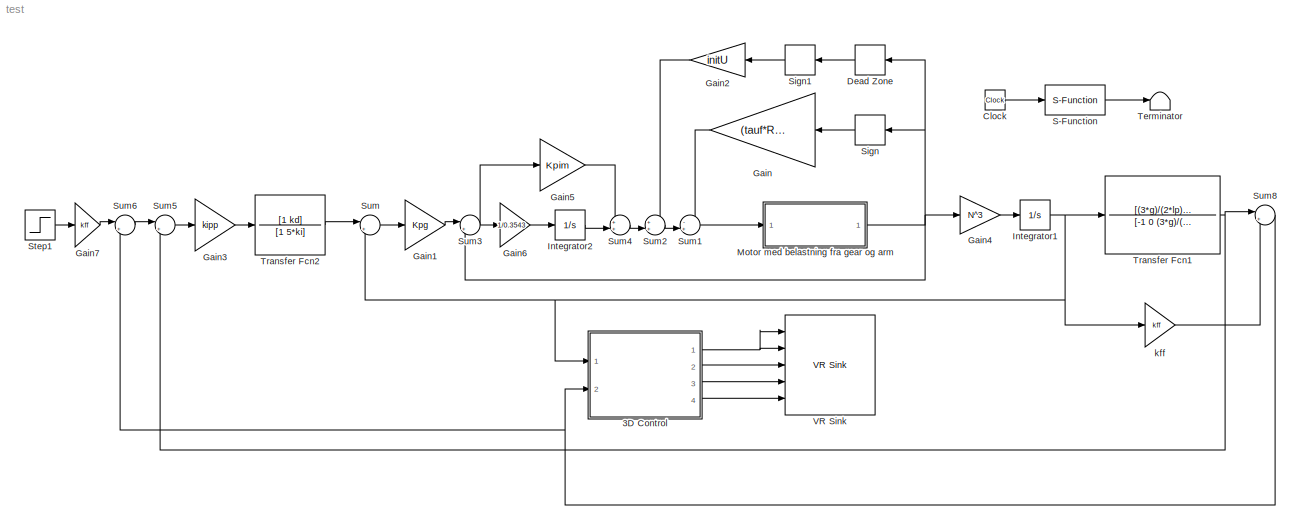
MODEL test
KIND model
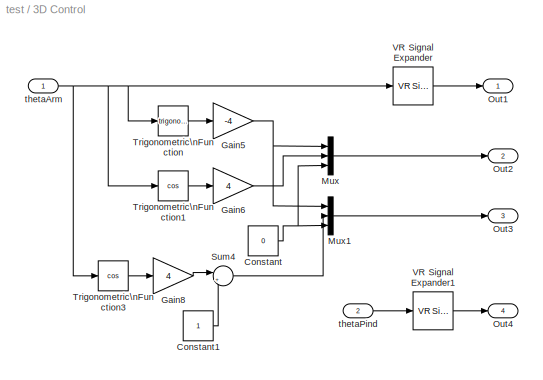
BLOCK [SubSystem] 3D Control
  FunctionWithSeparateData = off
  MaskHideContents = off
  MinAlgLoopOccurrences = off
  Opaque = off
  Ports = [2, 4]
  PropExecContextOutsideSubsystem = off
  RTWSystemCode = Auto
  RequestExecContextInheritance = off
  SID = 160
BLOCK [Constant] 3D Control/Constant
  OutDataType = fixdt(1, 16)
  OutScaling = 2^0
  SID = 163
  Value = 0
BLOCK [Constant] 3D Control/Constant1
  OutDataType = fixdt(1, 16)
  OutScaling = 2^0
  SID = 164
BLOCK [Gain] 3D Control/Gain5
  Gain = -4
  OutDataType = fixdt(1, 16)
  OutDataTypeMode = Inherit via internal rule
  OutDataTypeStr = Inherit: Inherit via internal rule
  OutScaling = 2^0
  ParamDataTypeStr = Inherit: Inherit via internal rule
  ParameterDataType = fixdt(1, 16)
  ParameterDataTypeMode = Inherit via internal rule
  ParameterScaling = 2^0
  SID = 165
  SaturateOnIntegerOverflow = off
BLOCK [Gain] 3D Control/Gain6
  Gain = 4
  OutDataType = fixdt(1, 16)
  OutDataTypeMode = Inherit via internal rule
  OutDataTypeStr = Inherit: Inherit via internal rule
  OutScaling = 2^0
  ParamDataTypeStr = Inherit: Inherit via internal rule
  ParameterDataType = fixdt(1, 16)
  ParameterDataTypeMode = Inherit via internal rule
  ParameterScaling = 2^0
  SID = 166
  SaturateOnIntegerOverflow = off
BLOCK [Gain] 3D Control/Gain8
  Gain = 4
  OutDataType = fixdt(1, 16)
  OutDataTypeMode = Inherit via internal rule
  OutDataTypeStr = Inherit: Inherit via internal rule
  OutScaling = 2^0
  ParamDataTypeStr = Inherit: Inherit via internal rule
  ParameterDataType = fixdt(1, 16)
  ParameterDataTypeMode = Inherit via internal rule
  ParameterScaling = 2^0
  SID = 167
  SaturateOnIntegerOverflow = off
BLOCK [Mux] 3D Control/Mux
  DisplayOption = bar
  Inputs = 3
  Ports = [3, 1]
  SID = 168
BLOCK [Mux] 3D Control/Mux1
  DisplayOption = bar
  Inputs = 3
  Ports = [3, 1]
  SID = 169
BLOCK [Outport] 3D Control/Out1
  IconDisplay = Port number
  OutDataType = fixdt(1, 16)
  OutScaling = 2^0
  SID = 162
BLOCK [Outport] 3D Control/Out2
  IconDisplay = Port number
  OutDataType = fixdt(1, 16)
  OutScaling = 2^0
  Port = 2
  SID = 177
BLOCK [Outport] 3D Control/Out3
  IconDisplay = Port number
  OutDataType = fixdt(1, 16)
  OutScaling = 2^0
  Port = 3
  SID = 178
BLOCK [Outport] 3D Control/Out4
  IconDisplay = Port number
  OutDataType = fixdt(1, 16)
  OutScaling = 2^0
  Port = 4
  SID = 179
BLOCK [Sum] 3D Control/Sum4
  IconShape = round
  InputSameDT = off
  Inputs = |+-
  OutDataType = fixdt(1, 16)
  OutDataTypeMode = Inherit via internal rule
  OutDataTypeStr = Inherit: Inherit via internal rule
  OutScaling = 2^0
  Ports = [2, 1]
  SID = 170
  SaturateOnIntegerOverflow = off
BLOCK [Trigonometry] 3D Control/Trigonometric\nFunction
  Ports = [1, 1]
  SID = 171
BLOCK [Trigonometry] 3D Control/Trigonometric\nFunction1
  Operator = cos
  Ports = [1, 1]
  SID = 172
BLOCK [Trigonometry] 3D Control/Trigonometric\nFunction3
  Operator = cos
  Ports = [1, 1]
  SID = 173
BLOCK [Reference] 3D Control/VR Signal Expander  REF=vrlib/VR Signal Expander
  FunctionWithSeparateData = off
  Ports = [1, 1]
  RTWMemSecDataConstants = Inherit from model
  RTWMemSecDataInternal = Inherit from model
  RTWMemSecDataParameters = Inherit from model
  RTWMemSecFuncExecute = Inherit from model
  RTWMemSecFuncInitTerm = Inherit from model
  SID = 174
  ShowPortLabels = FromPortIcon
  SourceBlock = vrlib/VR Signal Expander
  SourceType = VR Signal Expander
  SystemSampleTime = -1
  outidx = [4]
  outwidth = 4
BLOCK [Reference] 3D Control/VR Signal Expander1  REF=vrlib/VR Signal Expander
  FunctionWithSeparateData = off
  Ports = [1, 1]
  RTWMemSecDataConstants = Inherit from model
  RTWMemSecDataInternal = Inherit from model
  RTWMemSecDataParameters = Inherit from model
  RTWMemSecFuncExecute = Inherit from model
  RTWMemSecFuncInitTerm = Inherit from model
  SID = 175
  ShowPortLabels = FromPortIcon
  SourceBlock = vrlib/VR Signal Expander
  SourceType = VR Signal Expander
  SystemSampleTime = -1
  outidx = [4]
  outwidth = 4
BLOCK [Inport] 3D Control/thetaArm
  IconDisplay = Port number
  OutDataType = fixdt(1, 16)
  OutScaling = 2^0
  SID = 161
BLOCK [Inport] 3D Control/thetaPind
  IconDisplay = Port number
  OutDataType = fixdt(1, 16)
  OutScaling = 2^0
  Port = 2
  SID = 176
BLOCK [Clock] Clock
  Decimation = 10
  SID = 37
BLOCK [DeadZone] Dead Zone
  LowerValue = -0.1
  SID = 49
  UpperValue = 0.1
BLOCK [Gain] Gain
  Gain = (tauf*Rm)/Km
  OutDataType = fixdt(1, 16)
  OutDataTypeMode = Inherit via internal rule
  OutDataTypeStr = Inherit: Inherit via internal rule
  OutScaling = 2^0
  ParamDataTypeStr = Inherit: Inherit via internal rule
  ParameterDataType = fixdt(1, 16)
  ParameterDataTypeMode = Inherit via internal rule
  ParameterScaling = 2^0
  SID = 1
  SaturateOnIntegerOverflow = off
BLOCK [Gain] Gain1
  Gain = Kpg
  OutDataType = fixdt(1, 16)
  OutDataTypeMode = Inherit via internal rule
  OutDataTypeStr = Inherit: Inherit via internal rule
  OutScaling = 2^0
  ParamDataTypeStr = Inherit: Inherit via internal rule
  ParameterDataType = fixdt(1, 16)
  ParameterDataTypeMode = Inherit via internal rule
  ParameterScaling = 2^0
  SID = 26
  SaturateOnIntegerOverflow = off
BLOCK [Gain] Gain2
  Gain = initU
  OutDataType = fixdt(1, 16)
  OutDataTypeMode = Inherit via internal rule
  OutDataTypeStr = Inherit: Inherit via internal rule
  OutScaling = 2^0
  ParamDataTypeStr = Inherit: Inherit via internal rule
  ParameterDataType = fixdt(1, 16)
  ParameterDataTypeMode = Inherit via internal rule
  ParameterScaling = 2^0
  SID = 50
  SaturateOnIntegerOverflow = off
BLOCK [Gain] Gain3
  Gain = kipp
  OutDataType = fixdt(1, 16)
  OutDataTypeMode = Inherit via internal rule
  OutDataTypeStr = Inherit: Inherit via internal rule
  OutScaling = 2^0
  ParamDataTypeStr = Inherit: Inherit via internal rule
  ParameterDataType = fixdt(1, 16)
  ParameterDataTypeMode = Inherit via internal rule
  ParameterScaling = 2^0
  SID = 186
  SaturateOnIntegerOverflow = off
BLOCK [Gain] Gain4
  Gain = N^3
  OutDataType = fixdt(1, 16)
  OutDataTypeMode = Inherit via internal rule
  OutDataTypeStr = Inherit: Inherit via internal rule
  OutScaling = 2^0
  ParamDataTypeStr = Inherit: Inherit via internal rule
  ParameterDataType = fixdt(1, 16)
  ParameterDataTypeMode = Inherit via internal rule
  ParameterScaling = 2^0
  SID = 14
  SaturateOnIntegerOverflow = off
BLOCK [Gain] Gain5
  Gain = Kpim
  OutDataType = fixdt(1, 16)
  OutDataTypeMode = Inherit via internal rule
  OutDataTypeStr = Inherit: Inherit via internal rule
  OutScaling = 2^0
  ParamDataTypeStr = Inherit: Inherit via internal rule
  ParameterDataType = fixdt(1, 16)
  ParameterDataTypeMode = Inherit via internal rule
  ParameterScaling = 2^0
  SID = 180
  SaturateOnIntegerOverflow = off
BLOCK [Gain] Gain6
  Gain = 1/0.3543
  OutDataType = fixdt(1, 16)
  OutDataTypeMode = Inherit via internal rule
  OutDataTypeStr = Inherit: Inherit via internal rule
  OutScaling = 2^0
  ParamDataTypeStr = Inherit: Inherit via internal rule
  ParameterDataType = fixdt(1, 16)
  ParameterDataTypeMode = Inherit via internal rule
  ParameterScaling = 2^0
  SID = 181
  SaturateOnIntegerOverflow = off
BLOCK [Gain] Gain7
  Gain = kff
  OutDataType = fixdt(1, 16)
  OutDataTypeMode = Inherit via internal rule
  OutDataTypeStr = Inherit: Inherit via internal rule
  OutScaling = 2^0
  ParamDataTypeStr = Inherit: Inherit via internal rule
  ParameterDataType = fixdt(1, 16)
  ParameterDataTypeMode = Inherit via internal rule
  ParameterScaling = 2^0
  SID = 190
  SaturateOnIntegerOverflow = off
BLOCK [Integrator] Integrator1
  Ports = [1, 1]
  SID = 15
BLOCK [Integrator] Integrator2
  Ports = [1, 1]
  SID = 182
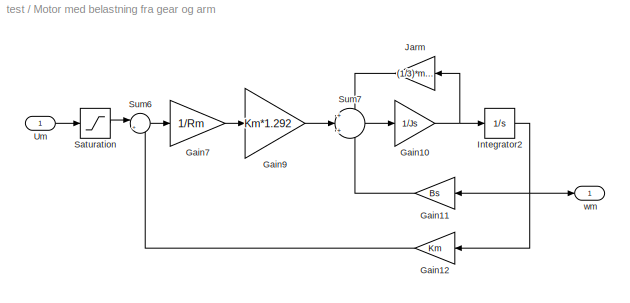
BLOCK [SubSystem] Motor med belastning fra gear og arm
  FunctionWithSeparateData = off
  MaskHideContents = off
  MinAlgLoopOccurrences = off
  Opaque = off
  Ports = [1, 1]
  PropExecContextOutsideSubsystem = off
  RTWSystemCode = Auto
  RequestExecContextInheritance = off
  SID = 136
BLOCK [Gain] Motor med belastning fra gear og arm/Gain10
  Gain = 1/Js
  OutDataType = fixdt(1, 16)
  OutDataTypeMode = Inherit via internal rule
  OutDataTypeStr = Inherit: Inherit via internal rule
  OutScaling = 2^0
  ParamDataTypeStr = Inherit: Inherit via internal rule
  ParameterDataType = fixdt(1, 16)
  ParameterDataTypeMode = Inherit via internal rule
  ParameterScaling = 2^0
  SID = 141
  SaturateOnIntegerOverflow = off
BLOCK [Gain] Motor med belastning fra gear og arm/Gain11
  Gain = Bs
  OutDataType = fixdt(1, 16)
  OutDataTypeMode = Inherit via internal rule
  OutDataTypeStr = Inherit: Inherit via internal rule
  OutScaling = 2^0
  ParamDataTypeStr = Inherit: Inherit via internal rule
  ParameterDataType = fixdt(1, 16)
  ParameterDataTypeMode = Inherit via internal rule
  ParameterScaling = 2^0
  SID = 142
  SaturateOnIntegerOverflow = off
BLOCK [Gain] Motor med belastning fra gear og arm/Gain12
  Gain = Km
  OutDataType = fixdt(1, 16)
  OutDataTypeMode = Inherit via internal rule
  OutDataTypeStr = Inherit: Inherit via internal rule
  OutScaling = 2^0
  ParamDataTypeStr = Inherit: Inherit via internal rule
  ParameterDataType = fixdt(1, 16)
  ParameterDataTypeMode = Inherit via internal rule
  ParameterScaling = 2^0
  SID = 143
  SaturateOnIntegerOverflow = off
BLOCK [Gain] Motor med belastning fra gear og arm/Gain7
  Gain = 1/Rm
  OutDataType = fixdt(1, 16)
  OutDataTypeMode = Inherit via internal rule
  OutDataTypeStr = Inherit: Inherit via internal rule
  OutScaling = 2^0
  ParamDataTypeStr = Inherit: Inherit via internal rule
  ParameterDataType = fixdt(1, 16)
  ParameterDataTypeMode = Inherit via internal rule
  ParameterScaling = 2^0
  SID = 144
  SaturateOnIntegerOverflow = off
BLOCK [Gain] Motor med belastning fra gear og arm/Gain9
  Gain = Km*1.292
  OutDataType = fixdt(1, 16)
  OutDataTypeMode = Inherit via internal rule
  OutDataTypeStr = Inherit: Inherit via internal rule
  OutScaling = 2^0
  ParamDataTypeStr = Inherit: Inherit via internal rule
  ParameterDataType = fixdt(1, 16)
  ParameterDataTypeMode = Inherit via internal rule
  ParameterScaling = 2^0
  SID = 145
  SaturateOnIntegerOverflow = off
BLOCK [Integrator] Motor med belastning fra gear og arm/Integrator2
  Ports = [1, 1]
  SID = 146
BLOCK [Gain] Motor med belastning fra gear og arm/Jarm
  Gain = (1/3)*ma*la^2*N^6
  OutDataType = fixdt(1, 16)
  OutDataTypeMode = Inherit via internal rule
  OutDataTypeStr = Inherit: Inherit via internal rule
  OutScaling = 2^0
  ParamDataTypeStr = Inherit: Inherit via internal rule
  ParameterDataType = fixdt(1, 16)
  ParameterDataTypeMode = Inherit via internal rule
  ParameterScaling = 2^0
  SID = 148
  SaturateOnIntegerOverflow = off
BLOCK [Saturate] Motor med belastning fra gear og arm/Saturation
  LowerLimit = -10
  OutDataType = fixdt(1, 16)
  OutScaling = 2^0
  SID = 149
  UpperLimit = 10
BLOCK [Sum] Motor med belastning fra gear og arm/Sum6
  IconShape = round
  InputSameDT = off
  Inputs = |+-
  OutDataType = fixdt(1, 16)
  OutDataTypeMode = Inherit via internal rule
  OutDataTypeStr = Inherit: Inherit via internal rule
  OutScaling = 2^0
  Ports = [2, 1]
  SID = 151
  SaturateOnIntegerOverflow = off
BLOCK [Sum] Motor med belastning fra gear og arm/Sum7
  IconShape = round
  InputSameDT = off
  Inputs = +|+|-
  OutDataType = fixdt(1, 16)
  OutDataTypeMode = Inherit via internal rule
  OutDataTypeStr = Inherit: Inherit via internal rule
  OutScaling = 2^0
  Ports = [3, 1]
  SID = 152
  SaturateOnIntegerOverflow = off
BLOCK [Inport] Motor med belastning fra gear og arm/Um
  IconDisplay = Port number
  OutDataType = fixdt(1, 16)
  OutScaling = 2^0
  SID = 159
BLOCK [Outport] Motor med belastning fra gear og arm/wm
  IconDisplay = Port number
  OutDataType = fixdt(1, 16)
  OutScaling = 2^0
  SID = 156
BLOCK [S-Function] S-Function
  EnableBusSupport = off
  FunctionName = sfun_time
  Ports = [1, 1]
  SID = 38
BLOCK [Signum] Sign
  SID = 7
  SampleTime = 0.01
BLOCK [Signum] Sign1
  SID = 51
BLOCK [Step] Step1
  After = pi/18
  SID = 90
  SampleTime = 0
BLOCK [Sum] Sum
  IconShape = round
  InputSameDT = off
  Inputs = |+-
  OutDataType = fixdt(1, 16)
  OutDataTypeMode = Inherit via internal rule
  OutDataTypeStr = Inherit: Inherit via internal rule
  OutScaling = 2^0
  Ports = [2, 1]
  SID = 9
  SaturateOnIntegerOverflow = off
BLOCK [Sum] Sum1
  IconShape = round
  InputSameDT = off
  Inputs = -+|
  OutDataType = fixdt(1, 16)
  OutDataTypeMode = Inherit via internal rule
  OutDataTypeStr = Inherit: Inherit via internal rule
  OutScaling = 2^0
  Ports = [2, 1]
  SID = 10
  SaturateOnIntegerOverflow = off
BLOCK [Sum] Sum2
  IconShape = round
  InputSameDT = off
  Inputs = ++|
  OutDataType = fixdt(1, 16)
  OutDataTypeMode = Inherit via internal rule
  OutDataTypeStr = Inherit: Inherit via internal rule
  OutScaling = 2^0
  Ports = [2, 1]
  SID = 46
  SaturateOnIntegerOverflow = off
BLOCK [Sum] Sum3
  IconShape = round
  InputSameDT = off
  Inputs = |+-
  OutDataType = fixdt(1, 16)
  OutDataTypeMode = Inherit via internal rule
  OutDataTypeStr = Inherit: Inherit via internal rule
  OutScaling = 2^0
  Ports = [2, 1]
  SID = 12
  SaturateOnIntegerOverflow = off
BLOCK [Sum] Sum4
  IconShape = round
  InputSameDT = off
  Inputs = ++|
  OutDataType = fixdt(1, 16)
  OutDataTypeMode = Inherit via internal rule
  OutDataTypeStr = Inherit: Inherit via internal rule
  OutScaling = 2^0
  Ports = [2, 1]
  SID = 183
  SaturateOnIntegerOverflow = off
BLOCK [Sum] Sum5
  IconShape = round
  InputSameDT = off
  Inputs = |+-
  OutDataType = fixdt(1, 16)
  OutDataTypeMode = Inherit via internal rule
  OutDataTypeStr = Inherit: Inherit via internal rule
  OutScaling = 2^0
  Ports = [2, 1]
  SID = 74
  SaturateOnIntegerOverflow = off
BLOCK [Sum] Sum6
  IconShape = round
  InputSameDT = off
  Inputs = |++
  OutDataType = fixdt(1, 16)
  OutDataTypeMode = Inherit via internal rule
  OutDataTypeStr = Inherit: Inherit via internal rule
  OutScaling = 2^0
  Ports = [2, 1]
  SID = 194
  SaturateOnIntegerOverflow = off
BLOCK [Sum] Sum8
  IconShape = round
  InputSameDT = off
  Inputs = |+-
  OutDataType = fixdt(1, 16)
  OutDataTypeMode = Inherit via internal rule
  OutDataTypeStr = Inherit: Inherit via internal rule
  OutScaling = 2^0
  Ports = [2, 1]
  SID = 193
  SaturateOnIntegerOverflow = off
BLOCK [Terminator] Terminator
  SID = 39
BLOCK [TransferFcn] Transfer Fcn1
  Denominator = [-1 0 (3*g)/(2*lp)]
  Numerator = [(3*g)/(2*lp)*(-3*la)/(2*lp)]
  SID = 83
BLOCK [TransferFcn] Transfer Fcn2
  Denominator = [1 5*ki]
  Numerator = [1 kd]
  SID = 187
BLOCK [Reference] VR Sink  REF=vrlib/VR Sink
  AutoView = off
  FieldsWritten = Ball.rotation.4.1.double#Arm.rotation.4.1.double#Pind.translation.3.1.double#AP.translation.3.1.double#Pind.rotation.4.1.double
  FigureProperties = {'Position', 'Name', 'Viewpoint', 'CameraBound', 'CameraDirection', 'CameraPosition', 'CameraUpVector', 'ZoomFactor', 'Antialiasing', 'Headlight', 'Lighting', 'NavPanel', 'StatusBar', 'ToolBar', 'Textures', 'Transparency', 'Wireframe', 'NavZones', 'NavMode', 'NavSpeed', 'Record2DCompressMethod', 'Record2DCompressQuality', 'Record2D', 'Record2DFileName', 'Record2DFPS'; [3.8900000000000000e+002  1.2...<+516ch>
  InstantiateOnLoad = on
  Ports = [5]
  RemoteChange = off
  RemoteView = on
  SID = 27
  SampleTime = 0.02
  SourceBlock = vrlib/VR Sink
  SourceType = Virtual Reality Sink
  VideoDimensions = []
  ViewEnable = on
  WorldFileName = VRML1.WRL
BLOCK [Gain] kff
  Gain = kff
  OutDataType = fixdt(1, 16)
  OutDataTypeMode = Inherit via internal rule
  OutDataTypeStr = Inherit: Inherit via internal rule
  OutScaling = 2^0
  ParamDataTypeStr = Inherit: Inherit via internal rule
  ParameterDataType = fixdt(1, 16)
  ParameterDataTypeMode = Inherit via internal rule
  ParameterScaling = 2^0
  SID = 184
  SaturateOnIntegerOverflow = off
LINE 3D Control/Constant1:1 -> 3D Control/Sum4:2
NET 3D Control/Constant:1 -> 3D Control/Mux1:3, 3D Control/Mux:3
NET 3D Control/Gain5:1 -> 3D Control/Mux1:1, 3D Control/Mux:1
LINE 3D Control/Gain6:1 -> 3D Control/Mux:2
LINE 3D Control/Gain8:1 -> 3D Control/Sum4:1
LINE 3D Control/Mux1:1 -> 3D Control/Out3:1
LINE 3D Control/Mux:1 -> 3D Control/Out2:1
LINE 3D Control/Sum4:1 -> 3D Control/Mux1:2
LINE 3D Control/Trigonometric\nFunction1:1 -> 3D Control/Gain6:1
LINE 3D Control/Trigonometric\nFunction3:1 -> 3D Control/Gain8:1
LINE 3D Control/Trigonometric\nFunction:1 -> 3D Control/Gain5:1
LINE 3D Control/VR Signal Expander1:1 -> 3D Control/Out4:1
LINE 3D Control/VR Signal Expander:1 -> 3D Control/Out1:1
NET 3D Control/thetaArm:1 -> 3D Control/Trigonometric\nFunction1:1, 3D Control/Trigonometric\nFunction3:1, 3D Control/Trigonometric\nFunction:1, 3D Control/VR Signal Expander:1
LINE 3D Control/thetaPind:1 -> 3D Control/VR Signal Expander1:1
NET 3D Control:1 -> VR Sink:1, VR Sink:2
LINE 3D Control:2 -> VR Sink:3
LINE 3D Control:3 -> VR Sink:4
LINE 3D Control:4 -> VR Sink:5
LINE Clock:1 -> S-Function:1
LINE Dead Zone:1 -> Sign1:1
LINE Gain1:1 -> Sum3:1
LINE Gain2:1 -> Sum2:1
LINE Gain3:1 -> Transfer Fcn2:1
LINE Gain4:1 -> Integrator1:1
LINE Gain5:1 -> Sum4:1
LINE Gain6:1 -> Integrator2:1
LINE Gain7:1 -> Sum6:1
LINE Gain:1 -> Sum1:1
NET Integrator1:1 -> 3D Control:1, Sum:2, Transfer Fcn1:1, kff:1
LINE Integrator2:1 -> Sum4:2
NET Motor med belastning fra gear og arm/Gain10:1 -> Motor med belastning fra gear og arm/Integrator2:1, Motor med belastning fra gear og arm/Jarm:1
LINE Motor med belastning fra gear og arm/Gain11:1 -> Motor med belastning fra gear og arm/Sum7:3
LINE Motor med belastning fra gear og arm/Gain12:1 -> Motor med belastning fra gear og arm/Sum6:2
LINE Motor med belastning fra gear og arm/Gain7:1 -> Motor med belastning fra gear og arm/Gain9:1
LINE Motor med belastning fra gear og arm/Gain9:1 -> Motor med belastning fra gear og arm/Sum7:2
NET Motor med belastning fra gear og arm/Integrator2:1 -> Motor med belastning fra gear og arm/Gain11:1, Motor med belastning fra gear og arm/Gain12:1, Motor med belastning fra gear og arm/wm:1
LINE Motor med belastning fra gear og arm/Jarm:1 -> Motor med belastning fra gear og arm/Sum7:1
LINE Motor med belastning fra gear og arm/Saturation:1 -> Motor med belastning fra gear og arm/Sum6:1
LINE Motor med belastning fra gear og arm/Sum6:1 -> Motor med belastning fra gear og arm/Gain7:1
LINE Motor med belastning fra gear og arm/Sum7:1 -> Motor med belastning fra gear og arm/Gain10:1
LINE Motor med belastning fra gear og arm/Um:1 -> Motor med belastning fra gear og arm/Saturation:1
NET Motor med belastning fra gear og arm:1 -> Dead Zone:1, Gain4:1, Sign:1, Sum3:2
LINE S-Function:1 -> Terminator:1
LINE Sign1:1 -> Gain2:1
LINE Sign:1 -> Gain:1
LINE Step1:1 -> Gain7:1
LINE Sum1:1 -> Motor med belastning fra gear og arm:1
LINE Sum2:1 -> Sum1:2
NET Sum3:1 -> Gain5:1, Gain6:1
LINE Sum4:1 -> Sum2:2
LINE Sum5:1 -> Gain3:1
LINE Sum6:1 -> Sum5:1
NET Sum8:1 -> 3D Control:2, Sum6:2
LINE Sum:1 -> Gain1:1
NET Transfer Fcn1:1 -> Sum5:2, Sum8:1
LINE Transfer Fcn2:1 -> Sum:1
LINE kff:1 -> Sum8:2
note: NET lines group one-source signal fan-out (src -> all destinations, sorted); 1:1 wires keep LINE
